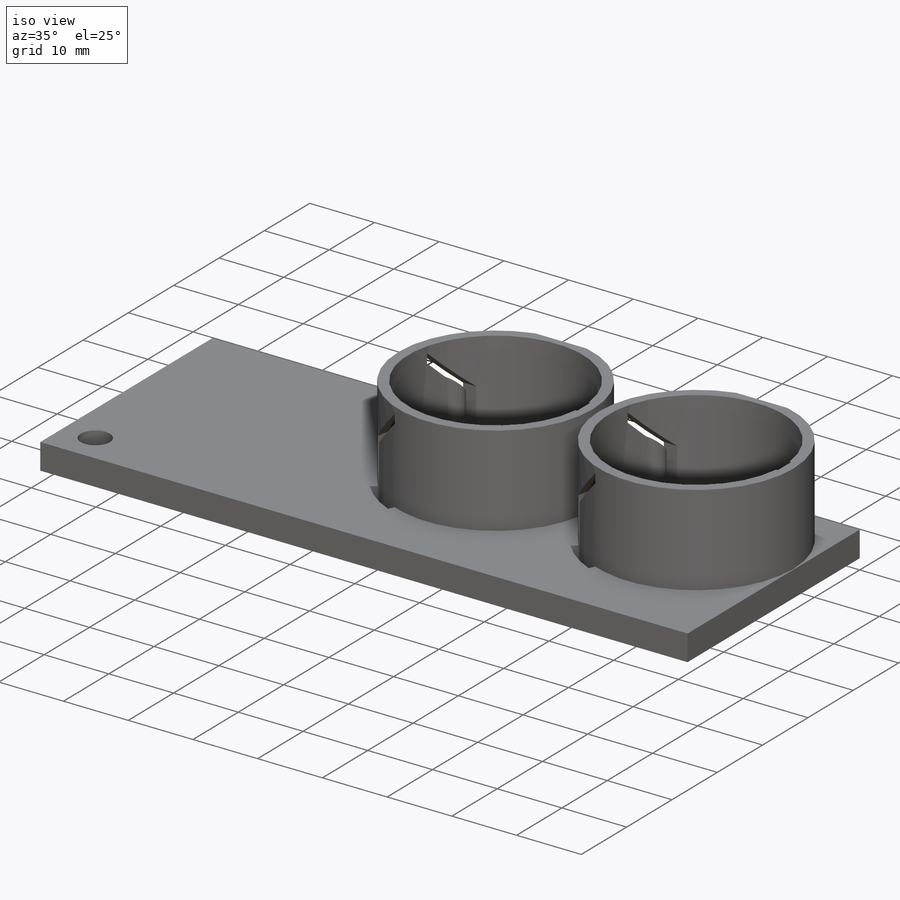
[diagram: iso view]
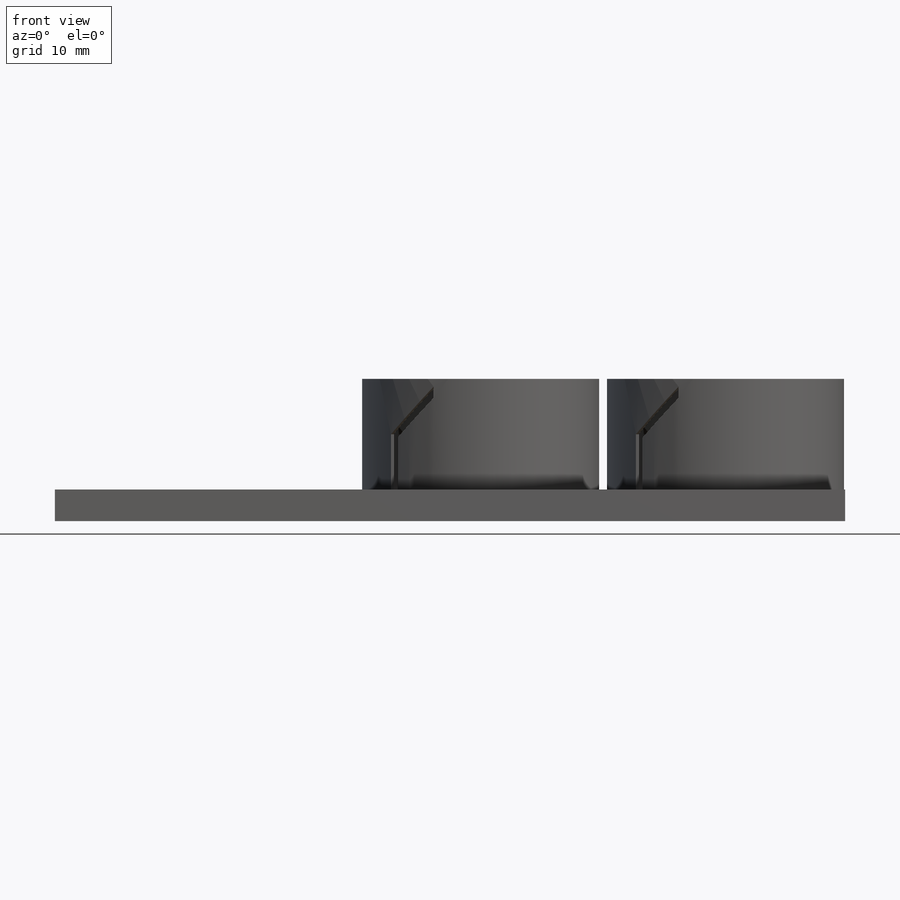
[diagram: front view]
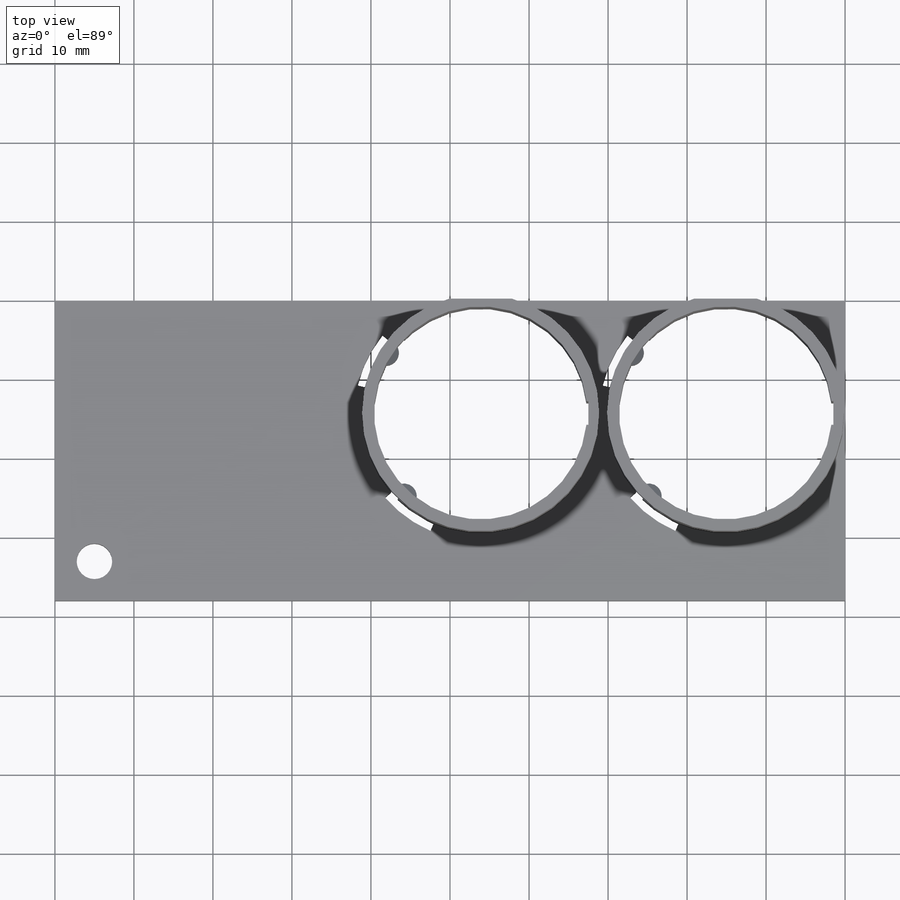
[diagram: top view]
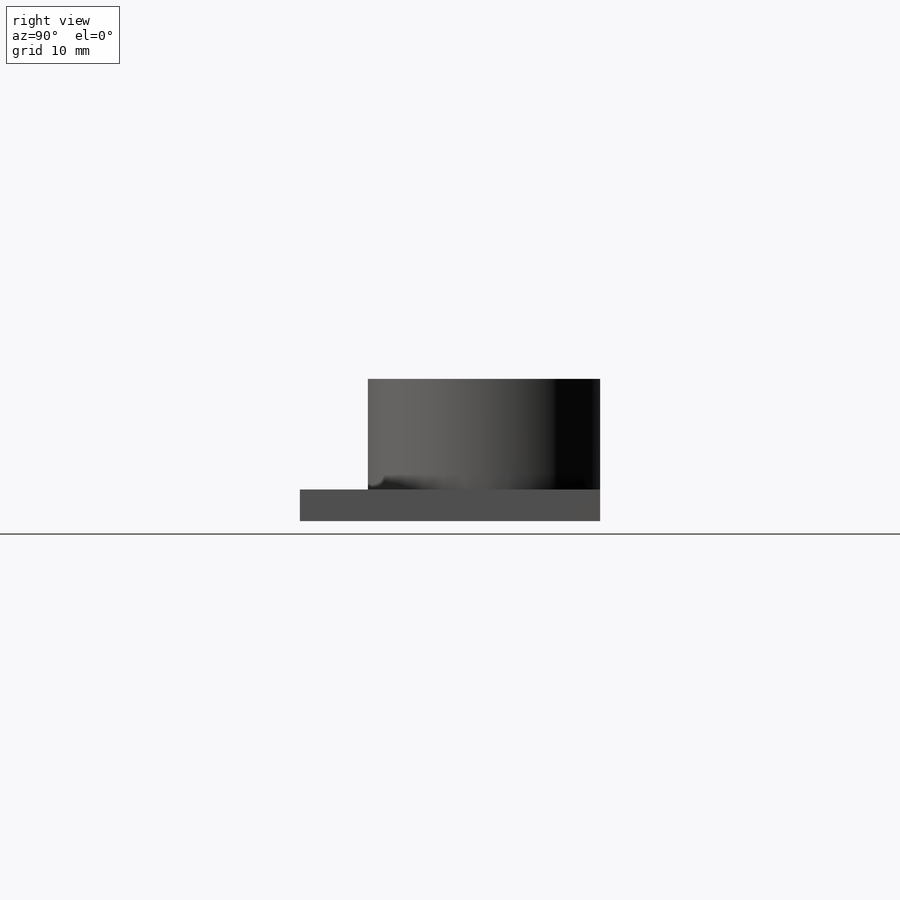
[diagram: right view]
SOLIDWORKS PART (.sldprt)
format: sldprt  version: not decoded by parser v0  size: 325,632 bytes
history: native  units: mm
features: sketch x10, cut_extrude x5, extrude x3, material x1, plane x1, pattern_circular x1, pattern_linear x1 (+12 scaffold rows collapsed)
feature tree (34):
  scaffold x12  (default folders/planes/origin — collapsed)
  material  "Material <not specified>"
  sketch  "Sketch1"  dims[D1=38.0mm D2=100.0mm]
  extrude  "Boss-Extrude1"  Depth=4mm
  sketch  "Sketch14"
  sketch  "Sketch2"  dims[D1=30.0mm D2=7.0mm]
  extrude  "Boss-Extrude2"  Depth=14mm
  sketch  "Sketch3"  dims[D1=26.95mm]
  cut_extrude  "Cut-Extrude2"  [1 undecoded]
  plane  "Plane1"
  sketch  "Sketch8"  dims[c1.D1=1.0mm c1.D2=1.0mm c1.D3=1.0mm c1.D4=5.0mm c1.D5=1.0mm c1.D6=6.0mm c1.D7=5.0mm c1.D8=6.0mm c2.D7=5.0mm c2.D8=2.0mm c2.D1=7.0mm c2.D4=4.6mm c2.D5=5.0mm]
  cut_extrude  "Cut-Extrude4"  [1 undecoded]
  sketch  "Sketch10"  dims[D1=1.0mm]
  cut_extrude  "Cut-Extrude5"  Depth=6mm
  sketch  "Sketch11"  dims[D1=0.5mm D2=0.75mm]
  extrude  "Boss-Extrude6"  Depth=7mm
  sketch  "Sketch12"  dims[D1=0.25mm D2=3.0mm]
  cut_extrude  "Cut-Extrude6"  [1 undecoded]
  sketch  "Sketch13"  dims[D1=18.0mm D2=7.0mm D3=7.0mm]
  sketch  "Sketch15"  dims[D1=4.5mm D2=5.0mm D3=5.0mm]
  cut_extrude  "Cut-Extrude7"  Depth=6mm
  pattern_circular  "CirPattern2"  Count=2 Angle=80deg
  pattern_linear  "LPattern3"  Count1=2 Count2=1 Spacing1=31mm Spacing2=50mm
decode coverage: 16 of 20 modeling features carry decoded parameters
note: 3 parameter values undecoded
summary: no parameter record found for 3 features
note: suppression state not decoded; provenance and decode notes live in map.json
